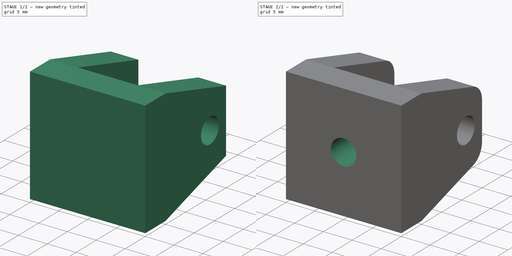
[diagram: build sequence overview — one tinted view per stage of 2, left to right]
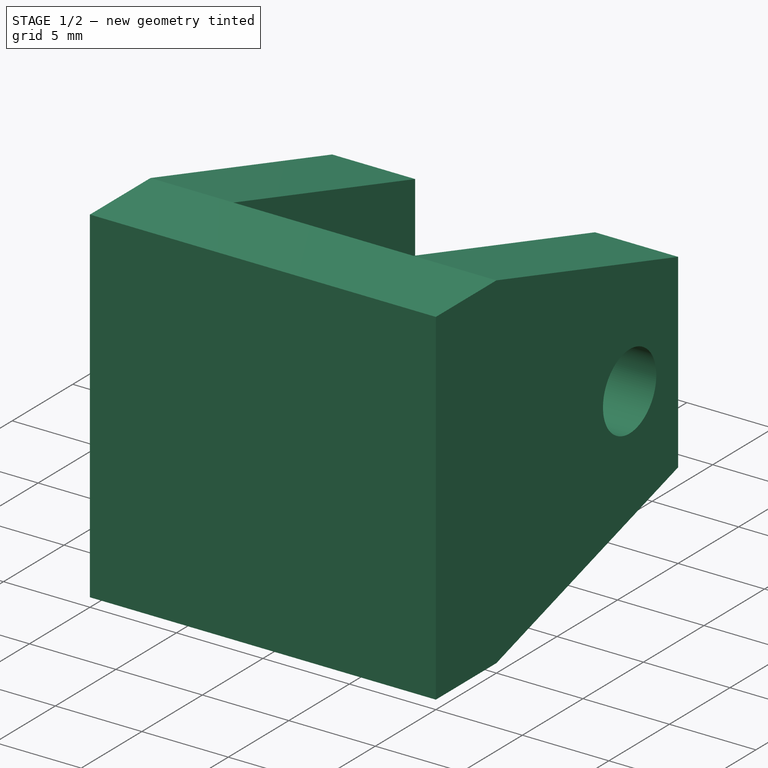
[diagram: stage 1 of 2 — iso view after this stage's code; geometry added in this stage tinted green]
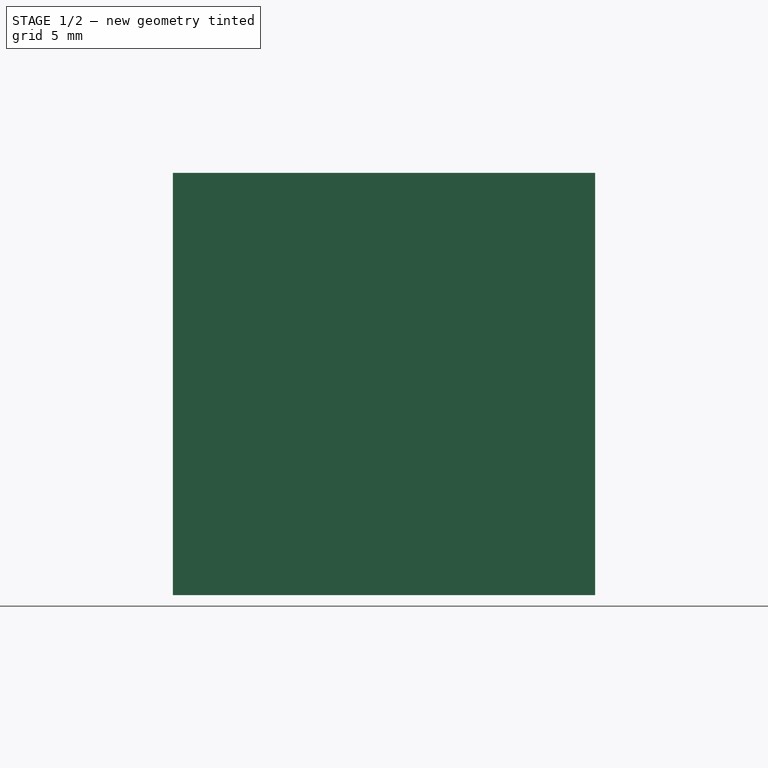
[diagram: stage 1 of 2 — front view after this stage's code; geometry added in this stage tinted green]
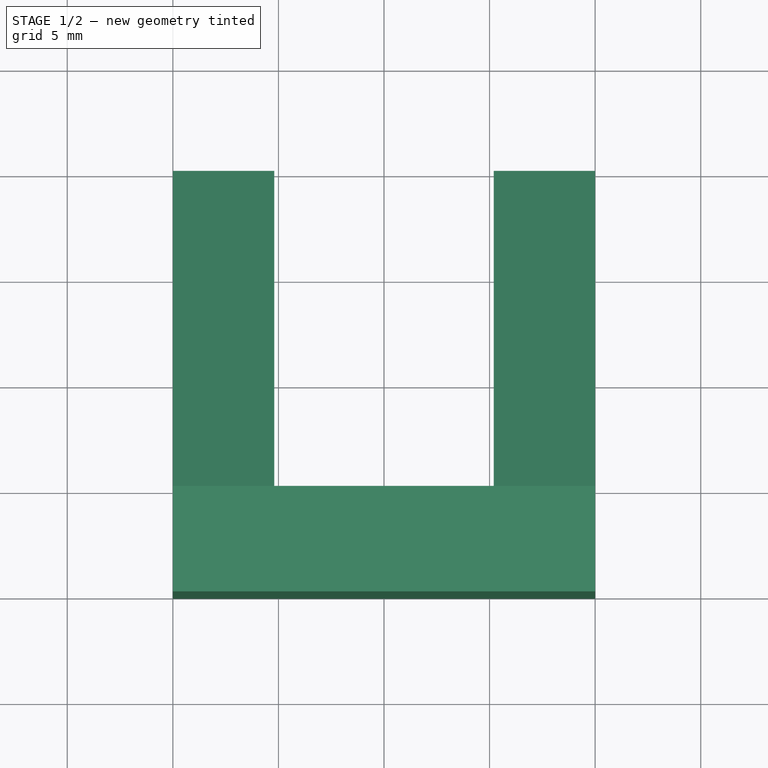
[diagram: stage 1 of 2 — top view after this stage's code; geometry added in this stage tinted green]
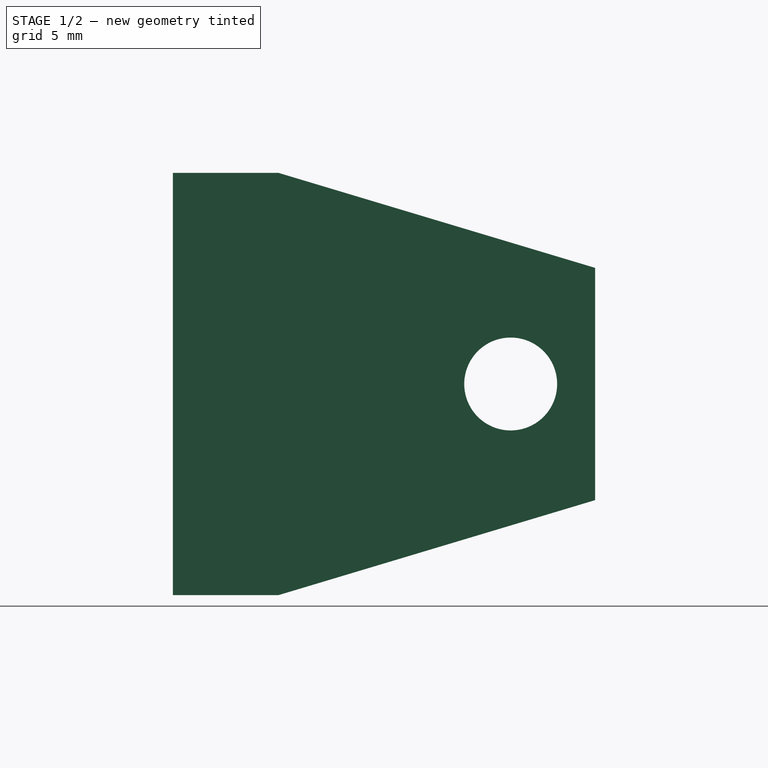
[diagram: stage 1 of 2 — right view after this stage's code; geometry added in this stage tinted green]
FCSTD DOCUMENT  (FreeCAD 0.18R4 (GitTag))
Label: Machined_Part-YZ_Idler-Syn1
License: All rights reserved
LicenseURL: http://en.wikipedia.org/wiki/All_rights_reserved
objects: Drawing::FeatureView×21, Sketcher::SketchObject×3, Drawing::FeatureViewPart×3, PartDesign::Pocket×2, PartDesign::Pad×1, PartDesign::Fillet×1, PartDesign::Body×1, Drawing::FeatureViewPython×1, Drawing::FeaturePage×1
note: 11 computed .brp shape members not serialized (recipe doc carries the construction recipe); baked Part::Feature solids carry a one-line shape summary decoded from their .brp

FEATURE [Sketcher::SketchObject] Sketch
  MapMode = 5
  Support = -> [XY_Plane]
  sketch-geometry (8):
    g0: LineSegment StartX=0 StartY=0 StartZ=0 EndX=0 EndY=-20 EndZ=0
    g1: LineSegment StartX=0 StartY=-20 StartZ=0 EndX=20 EndY=-20 EndZ=0
    g2: LineSegment StartX=20 StartY=-20 StartZ=0 EndX=20 EndY=0 EndZ=0
    g3: LineSegment StartX=4.8 StartY=0 StartZ=0 EndX=4.8 EndY=-15 EndZ=0
    g4: LineSegment StartX=4.8 StartY=-15 StartZ=0 EndX=15.2 EndY=-15 EndZ=0
    g5: LineSegment StartX=15.2 StartY=-15 StartZ=0 EndX=15.2 EndY=0 EndZ=0
    g6: LineSegment StartX=15.2 StartY=0 StartZ=0 EndX=20 EndY=0 EndZ=0
    g7: LineSegment StartX=4.8 StartY=0 StartZ=0 EndX=0 EndY=0 EndZ=0
  constraints (24):
    c: Coincident(g-1,g0)
    c: PointOnObject(g0,g-2)
    c: Coincident(g0,g1)
    c: Horizontal(g1)
    c: Coincident(g1,g2)
    c: PointOnObject(g2,g-1)
    c: Vertical(g2)
    c: Vertical(g3)
    c: Coincident(g3,g4)
    c: Horizontal(g4)
    c: Coincident(g4,g5)
    c: Vertical(g5)
    c: Coincident(g5,g6)
    c: PointOnObject(g6,g-1)
    c: Horizontal(g6)
    c: Coincident(g3,g7)
    c: Coincident(g7,g-1)
    c: Horizontal(g7)
    c: Coincident(g2,g6)
    c: Equal(g6,g7)
    c: DistanceX(g4,g4) = 10.4
    c: Equal(g0,g1)
    c: DistanceY(g0,g0) = 20
    c: DistanceY(g3,g3) = 15
FEATURE [PartDesign::Pad] Pad
  Length = 20
  Length2 = 100
  Profile = -> Sketch
  Type = 0
FEATURE [Sketcher::SketchObject] Sketch001
  ExternalGeometry = -> [Pad]
  MapMode = 5
  Placement = pos=(0,0,0) rot=(0.57735,-0.57735,-0.57735;2.0944rad)
  Support = -> [Pad]
  sketch-geometry (7):
    g0: LineSegment StartX=15 StartY=20 StartZ=0 EndX=0 EndY=20 EndZ=0
    g1: LineSegment StartX=0 StartY=20 StartZ=0 EndX=0 EndY=15.5 EndZ=0
    g2: LineSegment StartX=0 StartY=15.5 StartZ=0 EndX=15 EndY=20 EndZ=0
    g3: LineSegment StartX=15 StartY=0 StartZ=0 EndX=0 EndY=0 EndZ=0
    g4: LineSegment StartX=0 StartY=0 StartZ=0 EndX=0 EndY=4.5 EndZ=0
    g5: LineSegment StartX=0 StartY=4.5 StartZ=0 EndX=15 EndY=0 EndZ=0
    g6: Circle CenterX=4 CenterY=10 CenterZ=0 NormalX=0 NormalY=0 NormalZ=1 AngleXU=0 Radius=2.2
  constraints (19):
    c: Coincident(g0,g-3)
    c: Horizontal(g0)
    c: Coincident(g0,g1)
    c: PointOnObject(g1,g-2)
    c: Vertical(g1)
    c: Coincident(g1,g2)
    c: Coincident(g2,g0)
    c: PointOnObject(g3,g-1)
    c: Coincident(g3,g-1)
    c: Coincident(g3,g4)
    c: Vertical(g4)
    c: Coincident(g4,g5)
    c: Coincident(g3,g5)
    c: Equal(g1,g4)
    c: Equal(g3,g0)
    c: DistanceY(g4,g1) = 11
    c: DistanceY(g6,g0) = 10
    c: DistanceX(g0,g6) = 4
    c: Radius(g6) = 2.2
FEATURE [PartDesign::Pocket] Pocket
  BaseFeature = -> Pad
  Length = 5
  Length2 = 100
  Profile = -> Sketch001
  Type = 1
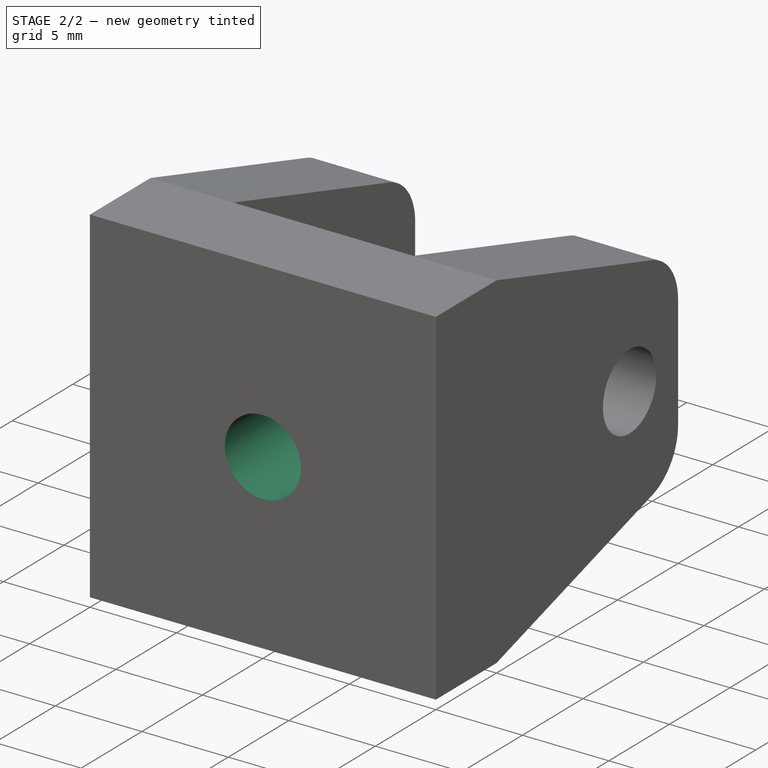
[diagram: stage 2 of 2 — iso view after this stage's code; geometry added in this stage tinted green]
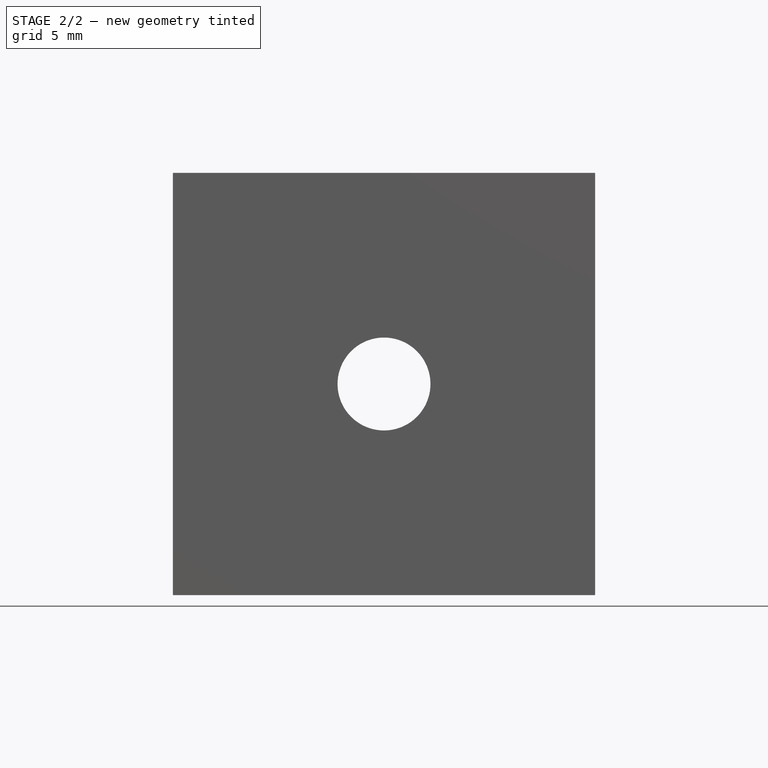
[diagram: stage 2 of 2 — front view after this stage's code; geometry added in this stage tinted green]
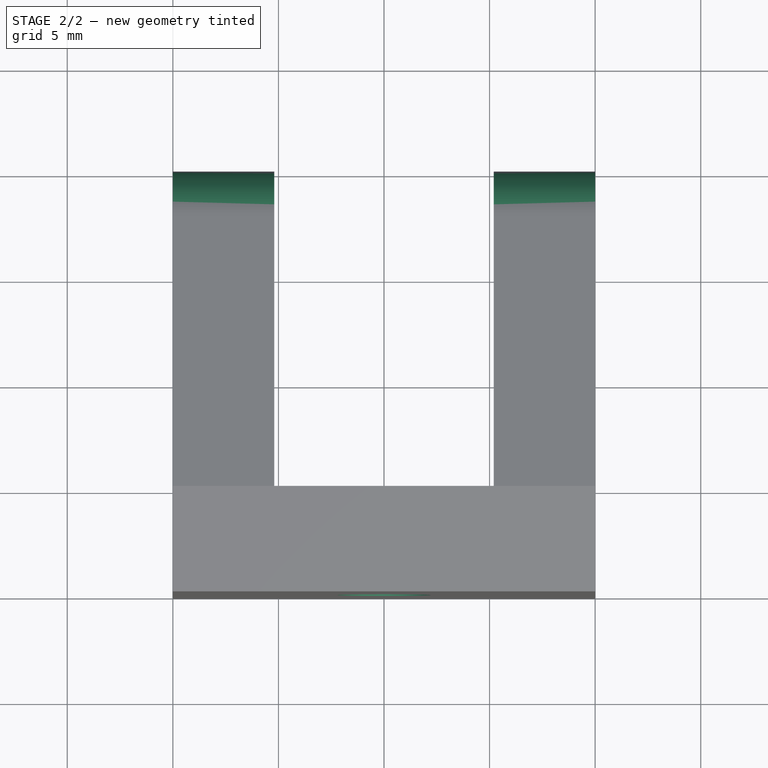
[diagram: stage 2 of 2 — top view after this stage's code; geometry added in this stage tinted green]
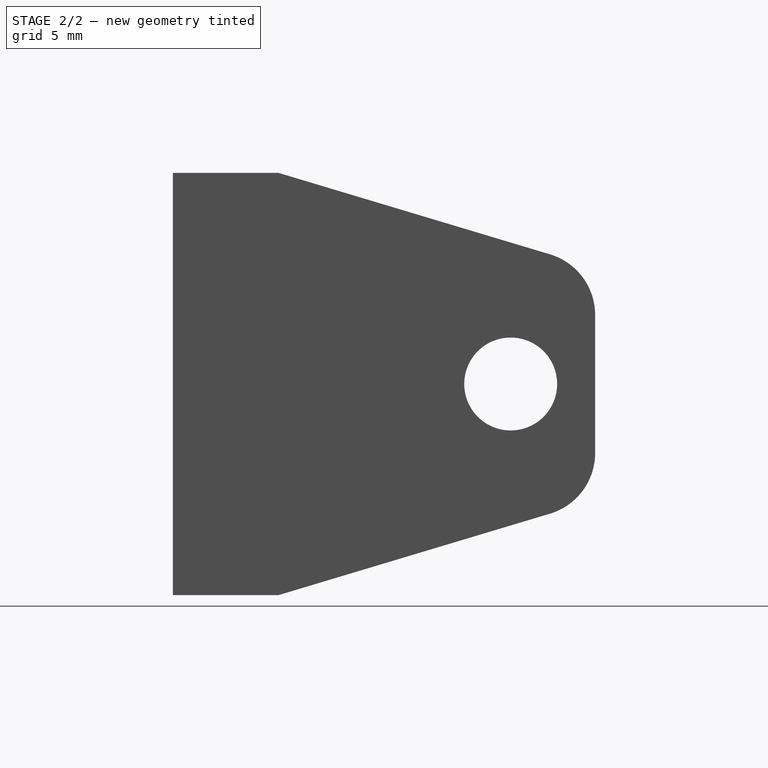
[diagram: stage 2 of 2 — right view after this stage's code; geometry added in this stage tinted green]
FEATURE [Sketcher::SketchObject] Sketch002
  MapMode = 5
  Placement = pos=(0,-20,0) rot=(1,0,0;1.5708rad)
  Support = -> [Pocket]
  sketch-geometry (1):
    g0: Circle CenterX=10 CenterY=10 CenterZ=0 NormalX=0 NormalY=0 NormalZ=1 AngleXU=0 Radius=2.2
  constraints (3):
    c: DistanceX(g0) = 10
    c: DistanceY(g0) = 10
    c: Radius(g0) = 2.2
FEATURE [PartDesign::Pocket] Pocket001
  BaseFeature = -> Pocket
  Length = 5
  Length2 = 100
  Profile = -> Sketch002
  Type = 0
FEATURE [PartDesign::Fillet] Fillet
  Base = -> Pocket001 [Edge3,Edge38,Edge1,Edge32]
  BaseFeature = -> Pocket001
  Radius = 3
FEATURE [PartDesign::Body] Body
  Group = -> [Sketch,Pad,Sketch001,Pocket,Sketch002,Pocket001,Fillet]
  Origin = -> Origin
  Tip = -> Fillet
FEATURE [Drawing::FeatureViewPart] Ortho  label="Ortho_0_0"
  Direction = (-1,0,0)
  HiddenWidth = 0.15
  LineWidth = 0.35
  Rotation = 180
  Scale = 2
  ShowHiddenLines = false
  ShowSmoothLines = false
  Source = -> Fillet
  Tolerance = 0.05
  ViewResult = <g id="Ortho_0_0"\n   transform="rotate(180,75.6667,92) translate(75.6667,92) scale(2,2)"\n  >\n<g   fill="none"\n   stroke="rgb(0, 0, 0)"\n   stroke-linecap="butt"\n   stroke-linejoin="miter"\n   stroke-width="0.175000"\n   transform="scale(1,-1)"\n  >\n<path id= "1" d=" M -6.73209 0 L -13.2679 0 " />\n<path id= "2" d=" M -3.85861 2.13796 L 0 15 " />\n<path d="M-6.73209 0 A3 3 0 0 1 -3.85861 2.13796" /><path id= "4" d=" M 0 15 L 0 20 " />\n<path id= "5" d=" M 0 20 L -20 20 " />\n<path d="M-13.2679 0 A3 3 0 0 0 -16.1414 2.13796" /><path id= "7" d=" M -20 15 L -20 20 " />\n<path id= "8" d=" M -16.1414 2.13796 L -20 15 " />\n<circle cx ="-10" cy ="4" r ="2.2" /><path id= "10" d=" M -3.85861 2.13796 L 0 15 " />\n<path id= "11" d=" M -16.1414 2.13796 L -20 15 " />\n<path id= "12" d=" M -6.73209 0 L -13.2679 0 " />\n</g>\n</g>
  Visible = true
  X = 75.6667
  Y = 92
FEATURE [Drawing::FeatureViewPart] Ortho001  label="Ortho_1_0"
  Direction = (0,0,1)
  HiddenWidth = 0.15
  LineWidth = 0.35
  Rotation = 0
  Scale = 2
  ShowHiddenLines = false
  ShowSmoothLines = false
  Source = -> Fillet
  Tolerance = 0.05
  ViewResult = <g id="Ortho_1_0"\n   transform="rotate(-6.36111e-15,181.333,92) translate(181.333,92) scale(2,2)"\n  >\n<g   fill="none"\n   stroke="rgb(0, 0, 0)"\n   stroke-linecap="butt"\n   stroke-linejoin="miter"\n   stroke-width="0.175000"\n   transform="scale(1,-1)"\n  >\n<path id= "1" d=" M 0 0 L 4.8 0 " />\n<path d="M0,0 L0,-0.0125171  L0,-0.049964  L0,-0.112028  L0,-0.198192  L0,-0.307736  L0,-0.439746  L0,-0.593121  L0,-0.766581  L0,-0.958678  L0,-1.16781  L0,-1.39223  L0,-1.63007  L0,-1.87934  L0,-2.13796 " /><path id= "3" d=" M 0 -15 L 0 -20 " />\n<path id= "4" d=" M 0 -2.13796 L 0 -15 " />\n<path d="M4.8,0 L4.8,-0.0125171  L4.8,-0.049964  L4.8,-0.112028  L4.8,-0.198192  L4.8,-0.307736  L4.8,-0.439746  L4.8,-0.593121  L4.8,-0.766581  L4.8,-0.958678  L4.8,-1.16781  L4.8,-1.39223  L4.8,-1.63007  L4.8,-1.87934  L4.8,-2.13796 " /><path id= "6" d=" M 4.8 -15 L 4.8 -2.13796 " />\n<path id= "7" d=" M 0 -20 L 20 -20 " />\n<path id= "8" d=" M 0 -15 L 4.8 -15 " />\n<path id= "9" d=" M 4.8 -15 L 15.2 -15 " />\n<path id= "10" d=" M 15.2 -15 L 20 -15 " />\n<path id= "11" d=" M 20 -20 L 20 -15 " />\n<path d="M20,-2.13796 L20,-1.87934  L20,-1.63007  L20,-1.39223  L20,-1.16781  L20,-0.958678  L20,-0.766581  L20,-0.593121  L20,-0.439746  L20,-0.307736  L20,-0.198192  L20,-0.112028  L20,-0.049964  L20,-0.0125171  L20,0 " /><path id= "13" d=" M 20 -2.13796 L 20 -15 " />\n<path id= "14" d=" M 15.2 -2.13796 L 15.2 -15 " />\n<path d="M15.2,-2.13796 L15.2,-1.87934  L15.2,-1.63007  L15.2,-1.39223  L15.2,-1.16781  L15.2,-0.958678  L15.2,-0.766581  L15.2,-0.593121  L15.2,-0.439746  L15.2,-0.307736  L15.2,-0.198192  L15.2,-0.112028  L15.2,-0.049964  L15.2,-0.0125171  L15.2,0 " /><path id= "16" d=" M 15.2 4.4e-16 L 20 4.4e-16 " />\n</g>\n</g>
  Visible = true
  X = 181.333
  Y = 92
FEATURE [Drawing::FeatureViewPart] Ortho002  label="Ortho_0_1"
  Direction = (0,1,0)
  HiddenWidth = 0.15
  LineWidth = 0.35
  Rotation = 0
  Scale = 2
  ShowHiddenLines = false
  ShowSmoothLines = false
  Source = -> Fillet
  Tolerance = 0.05
  ViewResult = <blob: 4579 chars omitted>
  Visible = true
  X = 75.6667
  Y = 71
FEATURE [Drawing::FeatureView] dim002
  Rotation = 0
  ViewResult = <g> \n  <line x1="73.666700" y1="132.000000" x2="64.755475" y2="132.000000" style="stroke:rgb(0,0,255);stroke-width:0.25" />\n<line x1="93.666700" y1="100.000000" x2="64.755475" y2="100.000000" style="stroke:rgb(0,0,255);stroke-width:0.25" />\n<line x1="65.755475" y1="132.000000" x2="65.755475" y2="100.000000" style="stroke:rgb(0,0,255);stroke-width:0.25" /> \n  <polygon points="65.755475,100.000000 64.755475,102.000000 65.755475,102.000000 66.755475,102.000000" style="fill:rgb(0,0,255);stroke:rgb(0,0,255);stroke-width:0" /><polygon points="65.755475,132.000000 66.755475,130.000000 65.755475,130.000000 64.755475,130.000000" style="fill:rgb(0,0,255);stroke:rgb(0,0,255);stroke-width:0" /> \n  <text x="63.755475" y="116.000000" font-family="inherit" font-size="3" fill="rgb(0,0,255)" text-anchor="middle" transform="rotate(-90.000000 63.755475,116.000000)" >16.0 </text> </g>
  Visible = true
  X = 0
  Y = 0
FEATURE [Drawing::FeatureView] dim003
  Rotation = 0
  ViewResult = <g> \n  <line x1="75.666700" y1="134.000000" x2="75.666700" y2="140.650893" style="stroke:rgb(0,0,255);stroke-width:0.25" />\n<line x1="95.666700" y1="102.000000" x2="95.666700" y2="140.650893" style="stroke:rgb(0,0,255);stroke-width:0.25" />\n<line x1="75.666700" y1="139.650893" x2="95.666700" y2="139.650893" style="stroke:rgb(0,0,255);stroke-width:0.25" /> \n  <polygon points="95.666700,139.650893 93.666700,138.650893 93.666700,139.650893 93.666700,140.650893" style="fill:rgb(0,0,255);stroke:rgb(0,0,255);stroke-width:0" /><polygon points="75.666700,139.650893 77.666700,140.650893 77.666700,139.650893 77.666700,138.650893" style="fill:rgb(0,0,255);stroke:rgb(0,0,255);stroke-width:0" /> \n  <text x="85.666700" y="137.650893" font-family="inherit" font-size="3" fill="rgb(0,0,255)" text-anchor="middle" transform="rotate(0.000000 85.666700,137.650893)" >10.0 </text> </g>
  Visible = true
  X = 0
  Y = 0
FEATURE [Drawing::FeatureView] dim004
  Rotation = 0
  ViewResult = <g> \n  <line x1="75.666700" y1="134.000000" x2="75.666700" y2="149.045209" style="stroke:rgb(0,0,255);stroke-width:0.25" />\n<line x1="115.666700" y1="134.000000" x2="115.666700" y2="149.045209" style="stroke:rgb(0,0,255);stroke-width:0.25" />\n<line x1="75.666700" y1="148.045209" x2="115.666700" y2="148.045209" style="stroke:rgb(0,0,255);stroke-width:0.25" /> \n  <polygon points="115.666700,148.045209 113.666700,147.045209 113.666700,148.045209 113.666700,149.045209" style="fill:rgb(0,0,255);stroke:rgb(0,0,255);stroke-width:0" /><polygon points="75.666700,148.045209 77.666700,149.045209 77.666700,148.045209 77.666700,147.045209" style="fill:rgb(0,0,255);stroke:rgb(0,0,255);stroke-width:0" /> \n  <text x="95.666700" y="146.045209" font-family="inherit" font-size="3" fill="rgb(0,0,255)" text-anchor="middle" transform="rotate(0.000000 95.666700,146.045209)" >20.0 </text> </g>
  Visible = true
  X = 0
  Y = 0
FEATURE [Drawing::FeatureView] dim005
  Rotation = 0
  ViewResult = <g> \n  <line x1="73.666700" y1="71.000000" x2="69.554659" y2="71.000000" style="stroke:rgb(0,0,255);stroke-width:0.25" />\n<line x1="73.666700" y1="61.400000" x2="69.554659" y2="61.400000" style="stroke:rgb(0,0,255);stroke-width:0.25" />\n<line x1="70.554659" y1="71.000000" x2="70.554659" y2="61.400000" style="stroke:rgb(0,0,255);stroke-width:0.25" /> \n  <polygon points="70.554659,61.400000 69.554659,63.400000 70.554659,63.400000 71.554659,63.400000" style="fill:rgb(0,0,255);stroke:rgb(0,0,255);stroke-width:0" /><polygon points="70.554659,71.000000 71.554659,69.000000 70.554659,69.000000 69.554659,69.000000" style="fill:rgb(0,0,255);stroke:rgb(0,0,255);stroke-width:0" /> \n  <text x="68.554659" y="66.200000" font-family="inherit" font-size="3" fill="rgb(0,0,255)" text-anchor="middle" transform="rotate(-90.000000 68.554659,66.200000)" >4.8 </text> </g>
  Visible = true
  X = 0
  Y = 0
FEATURE [Drawing::FeatureView] dim008
  Rotation = 0
  ViewResult = <g> \n  <line x1="73.666700" y1="71.000000" x2="56.142398" y2="71.000000" style="stroke:rgb(0,0,255);stroke-width:0.25" />\n<line x1="73.666700" y1="31.000000" x2="56.142398" y2="31.000000" style="stroke:rgb(0,0,255);stroke-width:0.25" />\n<line x1="57.142398" y1="71.000000" x2="57.142398" y2="31.000000" style="stroke:rgb(0,0,255);stroke-width:0.25" /> \n  <polygon points="57.142398,31.000000 56.142398,33.000000 57.142398,33.000000 58.142398,33.000000" style="fill:rgb(0,0,255);stroke:rgb(0,0,255);stroke-width:0" /><polygon points="57.142398,71.000000 58.142398,69.000000 57.142398,69.000000 56.142398,69.000000" style="fill:rgb(0,0,255);stroke:rgb(0,0,255);stroke-width:0" /> \n  <text x="55.142398" y="51.000000" font-family="inherit" font-size="3" fill="rgb(0,0,255)" text-anchor="middle" transform="rotate(-90.000000 55.142398,51.000000)" >20.0 </text> </g>
  Visible = true
  X = 0
  Y = 0
FEATURE [Drawing::FeatureView] dim009
  Rotation = 0
  ViewResult = <g> \n  <line x1="75.666700" y1="73.000000" x2="75.666700" y2="78.471905" style="stroke:rgb(0,0,255);stroke-width:0.25" />\n<line x1="95.666700" y1="53.000000" x2="95.666700" y2="78.471905" style="stroke:rgb(0,0,255);stroke-width:0.25" />\n<line x1="75.666700" y1="77.471905" x2="95.666700" y2="77.471905" style="stroke:rgb(0,0,255);stroke-width:0.25" /> \n  <polygon points="95.666700,77.471905 93.666700,76.471905 93.666700,77.471905 93.666700,78.471905" style="fill:rgb(0,0,255);stroke:rgb(0,0,255);stroke-width:0" /><polygon points="75.666700,77.471905 77.666700,78.471905 77.666700,77.471905 77.666700,76.471905" style="fill:rgb(0,0,255);stroke:rgb(0,0,255);stroke-width:0" /> \n  <text x="85.666700" y="75.471905" font-family="inherit" font-size="3" fill="rgb(0,0,255)" text-anchor="middle"  >10.00</text> </g>
  Visible = true
  X = 0
  Y = 0
FEATURE [Drawing::FeatureView] dim010
  Rotation = 0
  ViewResult = <g> \n  <line x1="179.333000" y1="132.000000" x2="168.331181" y2="132.000000" style="stroke:rgb(0,0,255);stroke-width:0.25" />\n<line x1="179.333000" y1="92.000000" x2="168.331181" y2="92.000000" style="stroke:rgb(0,0,255);stroke-width:0.25" />\n<line x1="169.331181" y1="132.000000" x2="169.331181" y2="92.000000" style="stroke:rgb(0,0,255);stroke-width:0.25" /> \n  <polygon points="169.331181,92.000000 168.331181,94.000000 169.331181,94.000000 170.331181,94.000000" style="fill:rgb(0,0,255);stroke:rgb(0,0,255);stroke-width:0" /><polygon points="169.331181,132.000000 170.331181,130.000000 169.331181,130.000000 168.331181,130.000000" style="fill:rgb(0,0,255);stroke:rgb(0,0,255);stroke-width:0" /> \n  <text x="167.331181" y="112.000000" font-family="inherit" font-size="3" fill="rgb(0,0,255)" text-anchor="middle" transform="rotate(-90.000000 167.331181,112.000000)" >2X 20.0 </text> </g>
  Visible = true
  X = 0
  Y = 0
FEATURE [Drawing::FeatureView] dim001
  Rotation = 0
  ViewResult = <g> \n  <line x1="179.333000" y1="132.000000" x2="175.353209" y2="132.000000" style="stroke:rgb(0,0,255);stroke-width:0.25" />\n<line x1="179.333000" y1="122.000000" x2="175.353209" y2="122.000000" style="stroke:rgb(0,0,255);stroke-width:0.25" />\n<line x1="176.353209" y1="132.000000" x2="176.353209" y2="122.000000" style="stroke:rgb(0,0,255);stroke-width:0.25" /> \n  <polygon points="176.353209,122.000000 175.353209,124.000000 176.353209,124.000000 177.353209,124.000000" style="fill:rgb(0,0,255);stroke:rgb(0,0,255);stroke-width:0" /><polygon points="176.353209,132.000000 177.353209,130.000000 176.353209,130.000000 175.353209,130.000000" style="fill:rgb(0,0,255);stroke:rgb(0,0,255);stroke-width:0" /> \n  <text x="174.353209" y="127.000000" font-family="inherit" font-size="3" fill="rgb(0,0,255)" text-anchor="middle" transform="rotate(-90.000000 174.353209,127.000000)" >5.0 </text> </g>
  Visible = true
  X = 0
  Y = 0
FEATURE [Drawing::FeatureView] dim011
  Rotation = 0
  ViewResult = <g>  <circle cx ="95.666700" cy ="51.000000" r="0.125000" stroke="none" fill="rgb(0,0,255)" /> \n<line x1="124.791463" y1="32.501957" x2="91.952517" y2="53.358993" style="stroke:rgb(0,0,255);stroke-width:0.25" />\n<polygon points="99.380883,48.641007 97.156483,48.869144 97.692618,49.713277 98.228753,50.557409" style="fill:rgb(0,0,255);stroke:rgb(0,0,255);stroke-width:0" />\n<polygon points="91.952517,53.358993 94.176917,53.130856 93.640782,52.286723 93.104647,51.442591" style="fill:rgb(0,0,255);stroke:rgb(0,0,255);stroke-width:0" />\n<line x1="124.791463" y1="32.501957" x2="142.045588" y2="32.501957" style="stroke:rgb(0,0,255);stroke-width:0.25" />\n<text x="133.418525" y="30.501957" font-family="inherit" font-size="3" fill="rgb(0,0,255)" text-anchor="middle"  >M5x0.8mm thread</text> </g>
  Visible = true
  X = 0
  Y = 0
FEATURE [Drawing::FeatureView] dim012
  Rotation = 0
  ViewResult = <g>  <circle cx ="95.666700" cy ="100.000000" r="0.125000" stroke="none" fill="rgb(0,0,255)" /> \n<line x1="117.970065" y1="85.066849" x2="92.010546" y2="102.447967" style="stroke:rgb(0,0,255);stroke-width:0.25" />\n<polygon points="99.322854,97.552033 97.104610,97.833801 97.660966,98.664745 98.217322,99.495689" style="fill:rgb(0,0,255);stroke:rgb(0,0,255);stroke-width:0" />\n<polygon points="92.010546,102.447967 94.228790,102.166199 93.672434,101.335255 93.116078,100.504311" style="fill:rgb(0,0,255);stroke:rgb(0,0,255);stroke-width:0" />\n<line x1="117.970065" y1="85.066849" x2="131.412232" y2="85.066849" style="stroke:rgb(0,0,255);stroke-width:0.25" />\n<text x="124.691148" y="83.066849" font-family="inherit" font-size="3" fill="rgb(0,0,255)" text-anchor="middle"  >M5x0.8mm continuous thread thru</text> </g>
  Visible = true
  X = 0
  Y = 0
FEATURE [Drawing::FeatureView] dim013
  Rotation = 0
  ViewResult = <g>  <circle cx ="89.130880" cy ="98.000000" r="0.125000" stroke="none" fill="rgb(0,0,255)" /> \n<line x1="74.433493" y1="86.671884" x2="89.130880" y2="98.000000" style="stroke:rgb(0,0,255);stroke-width:0.25" />\n<polygon points="84.378644,94.337180 85.352252,96.350159 85.962722,95.558120 86.573192,94.766081" style="fill:rgb(0,0,255);stroke:rgb(0,0,255);stroke-width:0" />\n<line x1="74.433493" y1="86.671884" x2="55.774963" y2="86.671884" style="stroke:rgb(0,0,255);stroke-width:0.25" />\n<text x="65.104228" y="84.671884" font-family="inherit" font-size="3" fill="rgb(0,0,255)" text-anchor="middle"  >4X R3.0</text> </g>
  Visible = true
  X = 0
  Y = 0
FEATURE [Drawing::FeatureView] dim014
  Rotation = 0
  ViewResult = <g> <line x1="117.666700" y1="132.000000" x2="134.348173" y2="132.000000" style="stroke:rgb(0,0,255);stroke-width:0.25" />\n<line x1="116.241394" y1="123.915653" x2="123.172719" y2="147.020140" style="stroke:rgb(0,0,255);stroke-width:0.25" />\n<path d = "M 133.348173 132.000000 A 14.681482 14.681482 0 0 1 122.885372 146.062313" style="stroke:rgb(0,0,255);stroke-width:0.25;fill:none" />\n<polygon points="133.348173,132.000000 132.348173,134.000000 133.348173,134.000000 134.348173,134.000000" style="fill:rgb(0,0,255);stroke:rgb(0,0,255);stroke-width:0" />\n<polygon points="122.885372,146.062313 125.088372,146.445446 124.801025,145.487619 124.513678,144.529793" style="fill:rgb(0,0,255);stroke:rgb(0,0,255);stroke-width:0" />\n<text x="132.014120" y="147.261951" font-family="inherit" font-size="3" fill="rgb(0,0,255)" text-anchor="0.852217922745"  >4X 73.3°</text> </g>
  Visible = true
  X = 0
  Y = 0
FEATURE [Drawing::FeatureView] centerLines001
  Rotation = 0
  ViewResult = <g transform="scale(2.000000,2.000000)" stroke="rgb(0,0,255)"  stroke-width="0.160000" > <path d="M 44.565440,49.000000 L 44.565440,48.050732 "/>\n<path d="M 44.565440,49.000000 L 43.837516,49.000000 "/>\n<path d="M 44.565440,49.000000 L 44.565440,49.655767 "/>\n<path d="M 44.565440,49.000000 L 45.141606,49.000000 "/> </g> 
  Visible = true
  X = 0
  Y = 0
FEATURE [Drawing::FeatureView] centerLines002
  Rotation = 0
  ViewResult = <g transform="scale(2.000000,2.000000)" stroke="rgb(0,0,255)"  stroke-width="0.160000" > <path d="M 47.833350,50.000000 L 47.833350,51.500000 "/>\n<path d="M 47.833350,50.000000 L 48.853250,50.000000 "/>\n<path d="M 47.833350,50.000000 L 47.833350,48.853250 "/>\n<path d="M 47.833350,50.000000 L 46.947271,50.000000 "/> </g> 
  Visible = true
  X = 0
  Y = 0
FEATURE [Drawing::FeatureView] centerLines003
  Rotation = 0
  ViewResult = <g transform="scale(2.000000,2.000000)" stroke="rgb(0,0,255)"  stroke-width="0.160000" > <path d="M 47.833350,25.500000 L 47.833350,27.000000 M 47.833350,28.000000 L 47.833350,28.088111 "/>\n<path d="M 47.833350,25.500000 L 49.154194,25.500000 "/>\n<path d="M 47.833350,25.500000 L 47.833350,24.000000 "/>\n<path d="M 47.833350,25.500000 L 46.445697,25.500000 "/> </g> 
  Visible = true
  X = 0
  Y = 0
FEATURE [Drawing::FeatureView] dim006
  Rotation = 0
  ViewResult = <g> \n  <line x1="73.666700" y1="61.400000" x2="71.427200" y2="61.400000" style="stroke:rgb(0,0,255);stroke-width:0.25" />\n<line x1="89.266700" y1="51.000000" x2="71.427200" y2="51.000000" style="stroke:rgb(0,0,255);stroke-width:0.25" />\n<line x1="72.427200" y1="61.400000" x2="72.427200" y2="51.000000" style="stroke:rgb(0,0,255);stroke-width:0.25" /> \n  <polygon points="72.427200,51.000000 71.427200,53.000000 72.427200,53.000000 73.427200,53.000000" style="fill:rgb(0,0,255);stroke:rgb(0,0,255);stroke-width:0" /><polygon points="72.427200,61.400000 73.427200,59.400000 72.427200,59.400000 71.427200,59.400000" style="fill:rgb(0,0,255);stroke:rgb(0,0,255);stroke-width:0" /> \n  <text x="70.427200" y="56.200000" font-family="inherit" font-size="3" fill="rgb(0,0,255)" text-anchor="middle" transform="rotate(-90.000000 70.427200,56.200000)" >5.20 </text> </g>
  Visible = true
  X = 0
  Y = 0
FEATURE [Drawing::FeatureView] dimText001
  Rotation = 0
  ViewResult = <g> <text x="195.300646" y="13.578595" font-family="inherit" font-size="3" fill="rgb(0,0,0)" text-anchor="inherit" transform="rotate(0.000000 195.300646,13.578595)" >Notes</text> </g>
  Visible = true
  X = 0
  Y = 0
FEATURE [Drawing::FeatureView] dimText002
  Rotation = 0
  ViewResult = <g> <text x="195.300646" y="17.623283" font-family="inherit" font-size="3" fill="rgb(0,0,0)" text-anchor="inherit" transform="rotate(0.000000 195.300646,17.623283)" >1. Parts must be RoHS compliant</text> </g>
  Visible = true
  X = 0
  Y = 0
FEATURE [Drawing::FeatureView] dimText003
  Rotation = 0
  ViewResult = <g> <text x="195.300646" y="21.379065" font-family="inherit" font-size="3" fill="rgb(0,0,0)" text-anchor="inherit" transform="rotate(0.000000 195.300646,21.379065)" >2. Parts must be clean, free of oil and debris</text> </g>
  Visible = true
  X = 0
  Y = 0
FEATURE [Drawing::FeatureView] dimText004
  Rotation = 0
  ViewResult = <g> <text x="195.300646" y="25.423753" font-family="inherit" font-size="3" fill="rgb(0,0,0)" text-anchor="inherit" transform="rotate(0.000000 195.300646,25.423753)" >3. Break all edges</text> </g>
  Visible = true
  X = 0
  Y = 0
FEATURE [Drawing::FeatureView] dimText005
  Rotation = 0
  ViewResult = <g> <text x="195.300646" y="29.179534" font-family="inherit" font-size="3" fill="rgb(0,0,0)" text-anchor="inherit"  >4. Material: 303 SST</text> </g>
  Visible = true
  X = 0
  Y = 0
FEATURE [Drawing::FeatureViewPython] dim007  # drawing view (typed FeaturePython)
  Rotation = 0
  ViewResult = <g> \n  <line x1="73.666700" y1="40.600000" x2="63.202970" y2="40.600000" style="stroke:rgb(0,0,255);stroke-width:0.25" />\n<line x1="73.666700" y1="61.400000" x2="63.202970" y2="61.400000" style="stroke:rgb(0,0,255);stroke-width:0.25" />\n<line x1="64.202970" y1="40.600000" x2="64.202970" y2="61.400000" style="stroke:rgb(0,0,255);stroke-width:0.25" /> \n  <polygon points="64.202970,61.400000 65.202970,59.400000 64.202970,59.400000 63.202970,59.400000" style="fill:rgb(0,0,255);stroke:rgb(0,0,255);stroke-width:0" /><polygon points="64.202970,40.600000 63.202970,42.600000 64.202970,42.600000 65.202970,42.600000" style="fill:rgb(0,0,255);stroke:rgb(0,0,255);stroke-width:0" /> \n  <text x="62.202970" y="51.000000" font-family="inherit" font-size="3" fill="rgb(0,0,255)" text-anchor="middle" transform="rotate(-90.000000 62.202970,51.000000)" >10.40 </text> </g>
  Visible = true
  X = 0
  Y = 0
  arrowL1 = 2
  arrowL2 = 0
  arrowW = 2
  arrow_scheme = 0
  autoPlaceOffset = 2
  autoPlaceText = true
  click1_x = 64.203
  click1_y = 55.192
  click2_x = 64.203
  click2_y = 55.192
  comma_decimal_place = false
  dimension_line_overshoot = 1
  gap_datum_points = 2
  halfDimension_linear = false
  lineColor = rgb(0,0,255)
  strokeWidth = 0.25
  textFormat_linear = %(value)3.2f 
  textRenderer_color = rgb(0,0,255)
  textRenderer_family = inherit
  textRenderer_size = 3
  unit_custom_scale = 1
  unit_scheme = 0
FEATURE [Drawing::FeaturePage] Page
  EditableTexts = West | 01/14/19 | CHECKED | XX/XX/XXXX | Machined Part, YZ Idler, Syn1 | 100071 | 303 SST | IR | 1 OF 1
  Group = -> [Ortho,Ortho001,Ortho002,dim002,dim003,dim004,dim005,dim008,dim009,dim010,dim001,dim011,dim012,dim013,dim014,centerLines001,centerLines002,centerLines003,dim006,dimText001,dimText002,dimText003,dimText004,dimText005,dim007]
  Template = <userpath>/Desktop/drawing templates/A4_Page1_attribution.svg
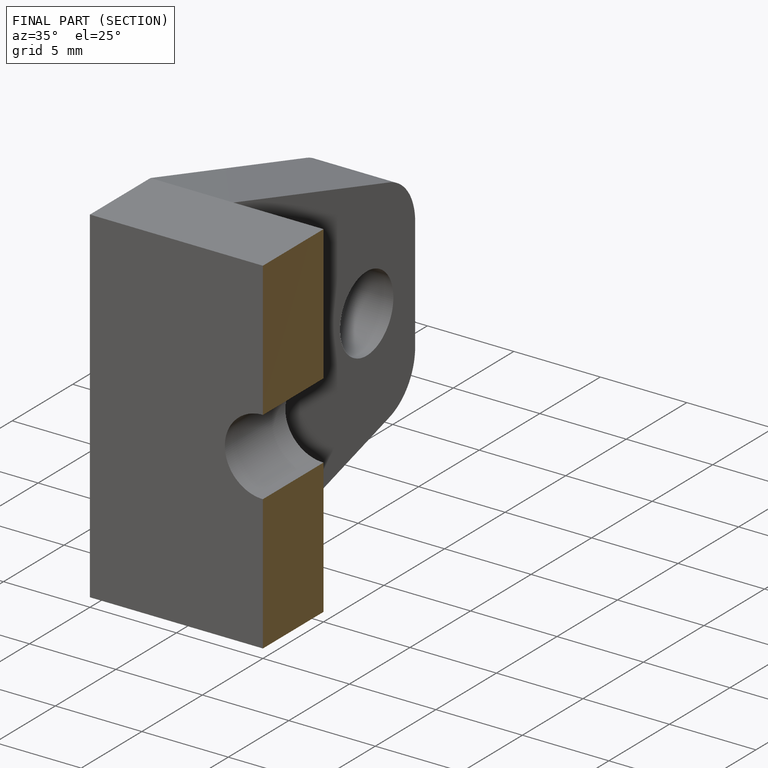
[diagram: finished part — half-section view (interior)]
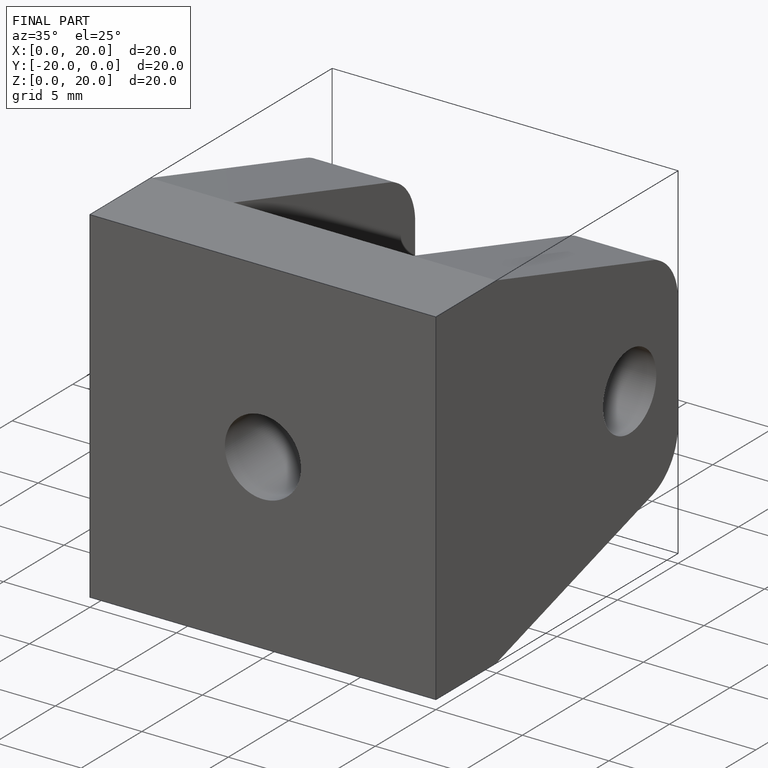
[diagram: finished part — iso view with bounding-box wireframe]
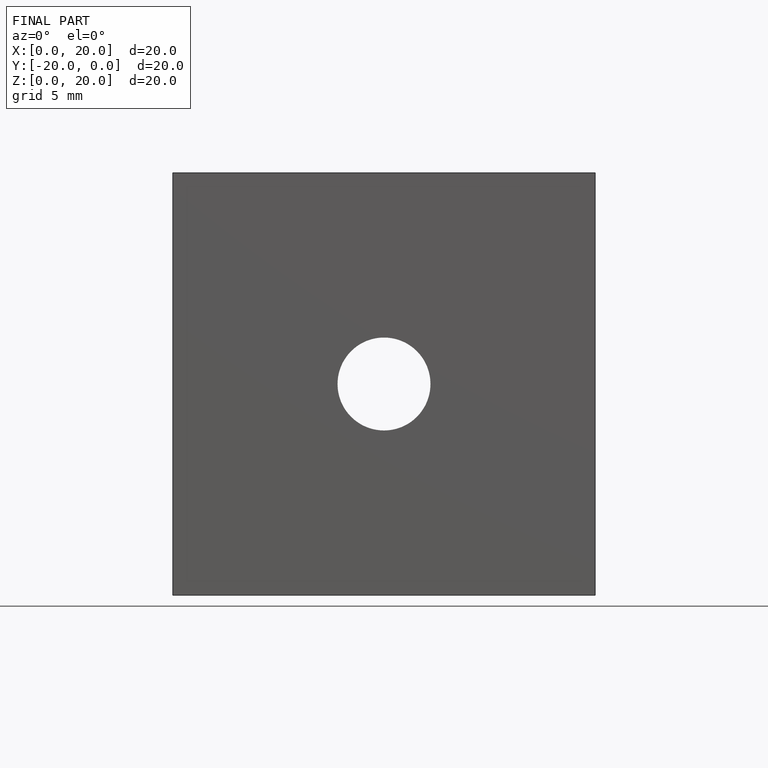
[diagram: finished part — front view with bounding-box wireframe]
